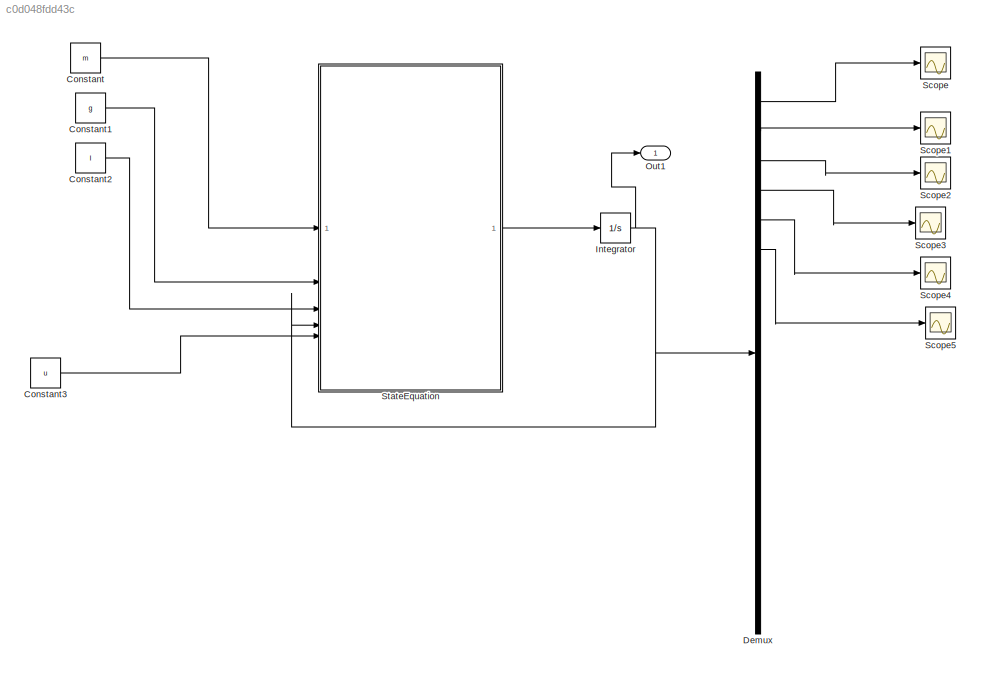
MODEL slx_c0d048fdd43c
KIND model
CONFIG AbsTol = auto
CONFIG EnableMultiTasking = off
CONFIG FixedStep = auto
CONFIG MaxStep = auto
CONFIG MinStep = auto
CONFIG RelTol = 1e-3
CONFIG SampleTimeConstraint = Unconstrained
CONFIG SolverName = VariableStepAuto
CONFIG StartTime = 0.0
CONFIG StopTime = 10.0
BLOCK [Constant] Constant
  Value = m
BLOCK [Constant] Constant1
  Value = g
BLOCK [Constant] Constant2
  Value = I
BLOCK [Constant] Constant3
  Value = u
BLOCK [Demux] Demux
  Outputs = 18
BLOCK [Integrator] Integrator
  InitialCondition = [0;0;0;0;0;0;1;0;0;0;1;0;0;0;1;0;0;0]
BLOCK [Outport] Out1
BLOCK [Scope] Scope
  Floating = off
  NumInputPorts = 1
  ScopeSpecificationString = Simulink.scopes.TimeScopeBlockCfg('CurrentConfiguration', extmgr.ConfigurationSet(extmgr.Configuration('Core','General UI',true),extmgr.Configuration('Core','Source UI',true),extmgr.Configuration('Sources','WiredSimulink',true),extmgr.Configuration('Visuals','Time Domain',true,'SerializedDisplays',{struct('MinYLimReal','-1.00000','MaxYLimReal','1.00000','YLabelReal','','MinYLimMag','0.00000','MaxY...<+1416ch>
BLOCK [Scope] Scope1
  Floating = off
  NumInputPorts = 1
  ScopeSpecificationString = Simulink.scopes.TimeScopeBlockCfg('CurrentConfiguration', extmgr.ConfigurationSet(extmgr.Configuration('Core','General UI',true),extmgr.Configuration('Core','Source UI',true),extmgr.Configuration('Sources','WiredSimulink',true,'DataLoggingVariableName','ScopeData1'),extmgr.Configuration('Visuals','Time Domain',true,'SerializedDisplays',{struct('MinYLimReal','-1.00000','MaxYLimReal','1.00000','YLab...<+1455ch>
BLOCK [Scope] Scope2
  Floating = off
  NumInputPorts = 1
  ScopeSpecificationString = Simulink.scopes.TimeScopeBlockCfg('CurrentConfiguration', extmgr.ConfigurationSet(extmgr.Configuration('Core','General UI',true),extmgr.Configuration('Core','Source UI',true),extmgr.Configuration('Sources','WiredSimulink',true,'DataLoggingVariableName','ScopeData2'),extmgr.Configuration('Visuals','Time Domain',true,'SerializedDisplays',{struct('MinYLimReal','-61.3125','MaxYLimReal','551.8125','YLa...<+1486ch>
BLOCK [Scope] Scope3
  Floating = off
  NumInputPorts = 1
  ScopeSpecificationString = Simulink.scopes.TimeScopeBlockCfg('CurrentConfiguration', extmgr.ConfigurationSet(extmgr.Configuration('Core','General UI',true),extmgr.Configuration('Core','Source UI',true),extmgr.Configuration('Sources','WiredSimulink',true,'DataLoggingVariableName','ScopeData3'),extmgr.Configuration('Visuals','Time Domain',true,'SerializedDisplays',{struct('MinYLimReal','-1.00000','MaxYLimReal','1.00000','YLab...<+1455ch>
BLOCK [Scope] Scope4
  Floating = off
  NumInputPorts = 1
  ScopeSpecificationString = Simulink.scopes.TimeScopeBlockCfg('CurrentConfiguration', extmgr.ConfigurationSet(extmgr.Configuration('Core','General UI',true),extmgr.Configuration('Core','Source UI',true),extmgr.Configuration('Sources','WiredSimulink',true,'DataLoggingVariableName','ScopeData4'),extmgr.Configuration('Visuals','Time Domain',true,'SerializedDisplays',{struct('MinYLimReal','-1.00000','MaxYLimReal','1.00000','YLab...<+1455ch>
BLOCK [Scope] Scope5
  Floating = off
  NumInputPorts = 1
  ScopeSpecificationString = Simulink.scopes.TimeScopeBlockCfg('CurrentConfiguration', extmgr.ConfigurationSet(extmgr.Configuration('Core','General UI',true),extmgr.Configuration('Core','Source UI',true),extmgr.Configuration('Sources','WiredSimulink',true,'DataLoggingVariableName','ScopeData5'),extmgr.Configuration('Visuals','Time Domain',true,'SerializedDisplays',{struct('MinYLimReal','-11.97448','MaxYLimReal','107.77033','Y...<+1465ch>
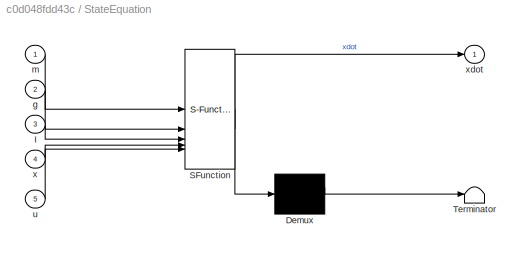
BLOCK [SubSystem] StateEquation
  ErrorFcn = Stateflow.Translate.translate
  PermitHierarchicalResolution = ExplicitOnly
  SFBlockType = MATLAB Function
  TreatAsAtomicUnit = on
BLOCK [Demux] StateEquation/ Demux 
  Outputs = 1
BLOCK [S-Function] StateEquation/ SFunction 
  EnableBusSupport = on
  FunctionName = sf_sfun
  PortCounts = [5 2]
  SFcnIsStateOwnerBlock = off
  SFunctionDeploymentMode = off
  Tag = Stateflow S-Function 1
BLOCK [Terminator] StateEquation/ Terminator 
BLOCK [Inport] StateEquation/I
  Port = 3
BLOCK [Inport] StateEquation/g
  Port = 2
BLOCK [Inport] StateEquation/m
BLOCK [Inport] StateEquation/u
  Port = 5
BLOCK [Inport] StateEquation/x
  Port = 4
BLOCK [Outport] StateEquation/xdot
LINE Constant1:1 -> StateEquation:2
LINE Constant2:1 -> StateEquation:3
LINE Constant3:1 -> StateEquation:5
LINE Constant:1 -> StateEquation:1
LINE Demux:1 -> Scope:1
LINE Demux:2 -> Scope1:1
LINE Demux:3 -> Scope2:1
LINE Demux:4 -> Scope3:1
LINE Demux:5 -> Scope4:1
LINE Demux:6 -> Scope5:1
NET Integrator:1 -> Demux:1, Out1:1, StateEquation:4
LINE StateEquation:1 -> Integrator:1
note: NET lines group one-source signal fan-out (src -> all destinations, sorted); 1:1 wires keep LINE
CHART StateEquation states=1 transitions=1
  STATE_LABEL 'eML_blk_kernel()'
  STATE_LABEL 'SCRIPT:\nfunction xdot = fcn(m,g,I,x,u)\n\n% extract the x-vextor\np = x(1:3,1);\nv = x(4:6,1);\nR = reshape(x(7:15,1),3,3);\nomega = x(16:18,1);\n\n%control signal\nf = u(3,1);\nM = u(4:6,1);\n\ne3 = [0;0;1];\n\n\nxdot = zeros(size(x));\n\nxdot(1:3,1) = v;\nxdot(4:6,1) = g*e3 - (1/m)*f*R*e3;\n\nRdot = R*hatmap(omega);\nxdot(7:15,1) = Rdot(:);\n\nxdot(16:18,1) = I\\(M - cross(omega,I*omega));\n\n\n\n\nend'
CHART  states=0 transitions=0
